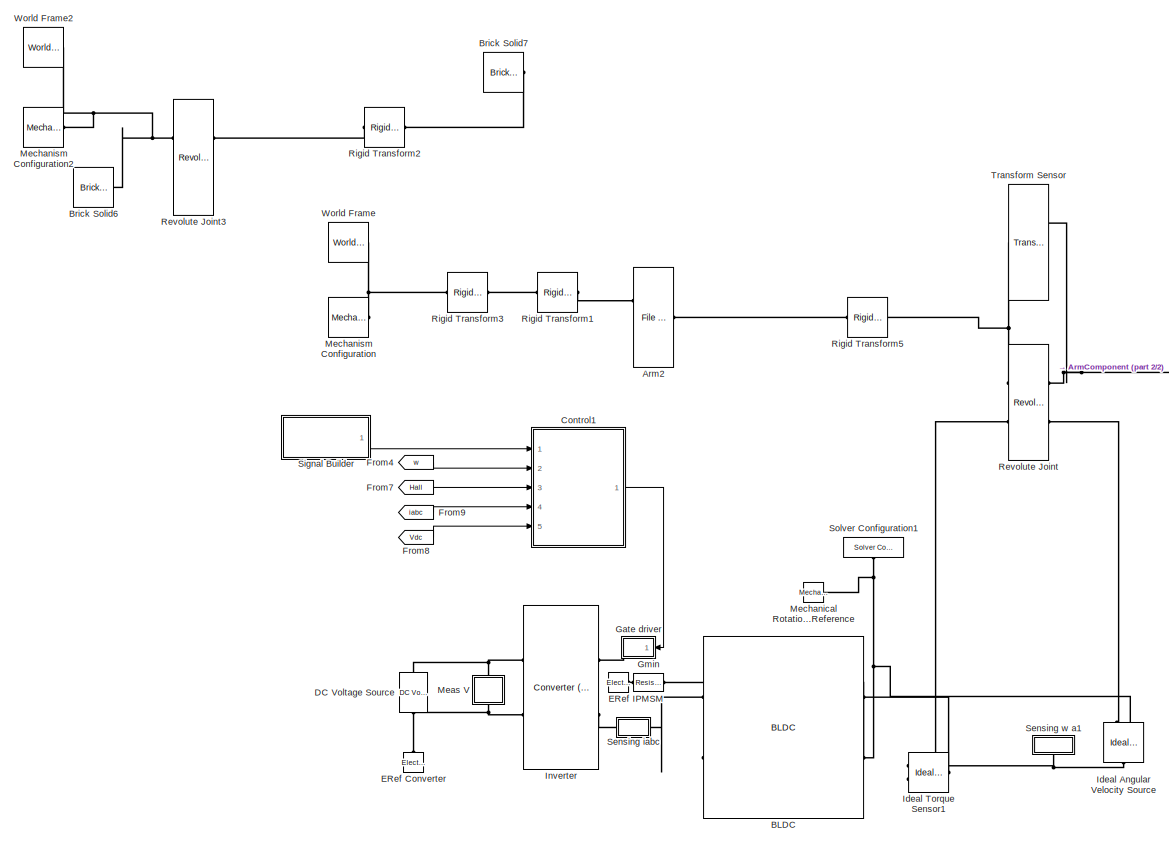
[diagram: root canvas - part 1/2, center side, full height]
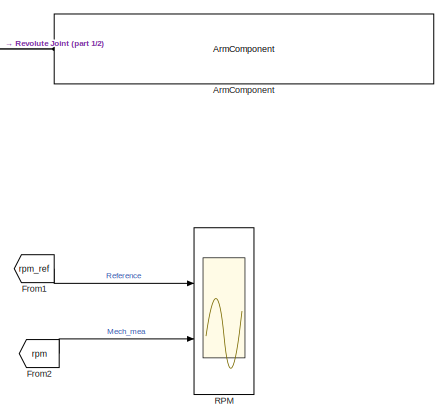
[diagram: root canvas - part 2/2, middle right region]
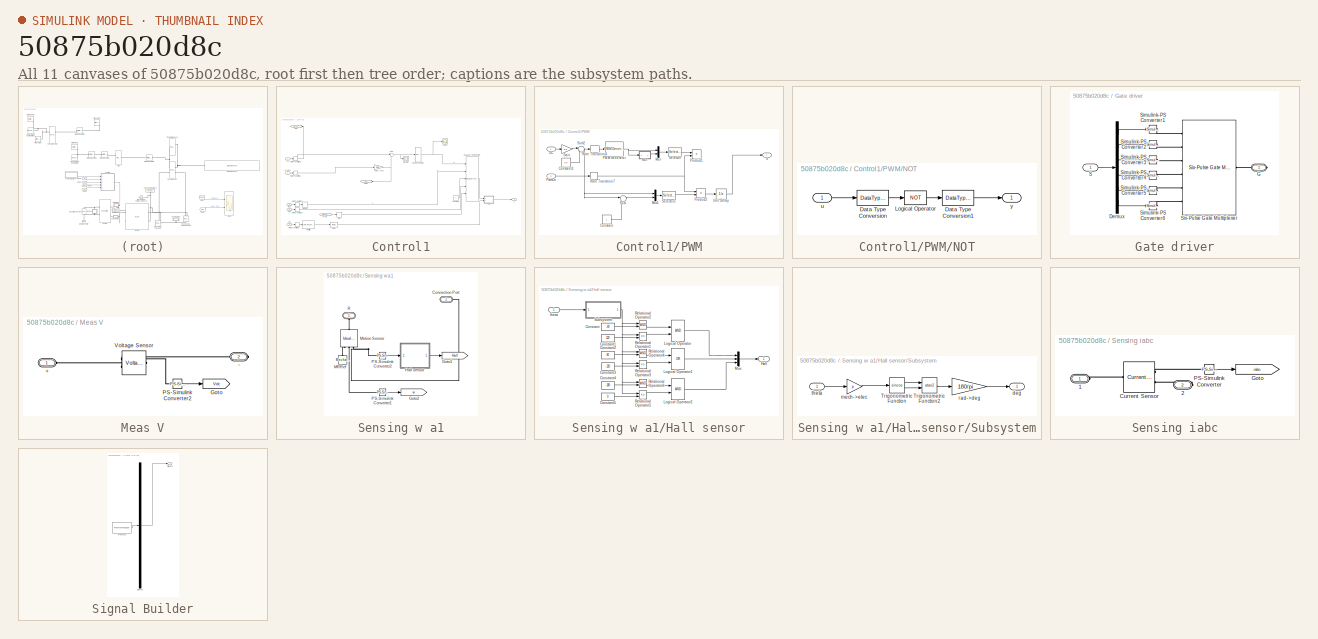
[diagram: thumbnail index - all 11 canvases of the model, root first then tree order]
MODEL slx_50875b020d8c
KIND model
CONFIG AbsTol = auto
CONFIG EnableMultiTasking = off
CONFIG FixedStep = Ts
CONFIG InitFcn = Ts = 2e-4;\nTsc = Ts;
CONFIG MaxStep = auto
CONFIG MinStep = auto
CONFIG RelTol = 1e-3
CONFIG SampleTimeConstraint = Unconstrained
CONFIG Solver = VariableStepAuto
CONFIG SolverName = VariableStepAuto
CONFIG StartTime = 0.0
CONFIG StopTime = 1
BLOCK [Reference]  Arm2   REF=sm_lib/Body Elements/File Solid
  Ports = [0, 0, 0, 0, 0, 2, 1]
  SourceBlock = sm_lib/Body Elements/File Solid
  SourceProductBaseCode = MS
  SourceProductName = Simscape Multibody
  SourceType = File Solid
BLOCK [Reference] ArmComponent  REF=test_library/ArmComponent  (lib defined in slx_4c4a53204023)
  Ports = [0, 0, 0, 0, 0, 1, 1]
  SourceBlock = test_library/ArmComponent
BLOCK [Reference] BLDC  REF=ee_lib/Electromechanical/Permanent Magnet/BLDC
  Ports = [0, 0, 0, 0, 0, 2, 2]
  SourceBlock = ee_lib/Electromechanical/Permanent Magnet/BLDC
  SourceProductBaseCode = PS
  SourceProductName = Simscape Electrical
  SourceType = BLDC
BLOCK [Reference] Brick Solid6  REF=sm_lib/Body Elements/Brick Solid
  Commented = on
  Ports = [0, 0, 0, 0, 0, 0, 1]
  SourceBlock = sm_lib/Body Elements/Brick Solid
  SourceProductBaseCode = MS
  SourceProductName = Simscape Multibody
  SourceType = Brick Solid
BLOCK [Reference] Brick Solid7  REF=sm_lib/Body Elements/Brick Solid
  Commented = on
  Ports = [0, 0, 0, 0, 0, 0, 1]
  SourceBlock = sm_lib/Body Elements/Brick Solid
  SourceProductBaseCode = MS
  SourceProductName = Simscape Multibody
  SourceType = Brick Solid
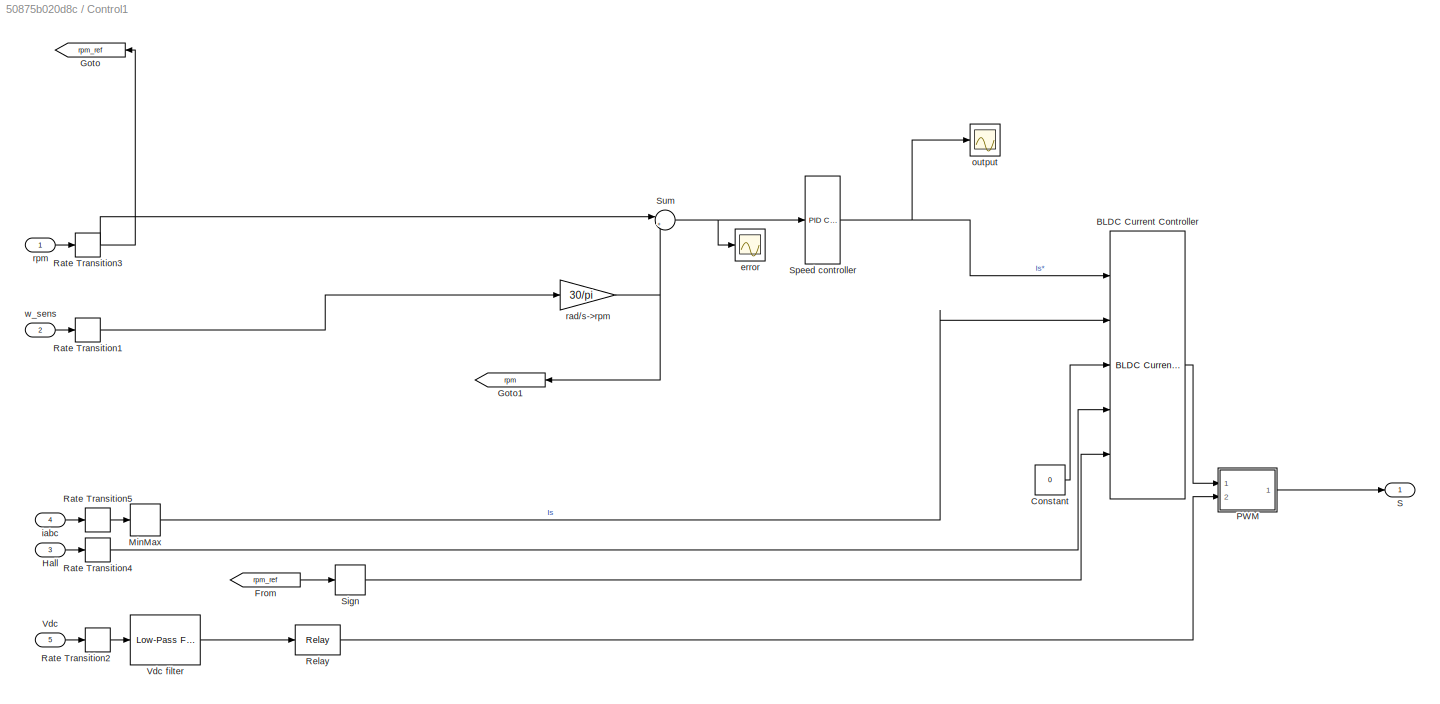
BLOCK [SubSystem] Control1
  Ports = [5, 1]
  RequestExecContextInheritance = off
BLOCK [Reference] Control1/BLDC Current Controller  REF=eeBldcCurrentController/BLDC Current Controller
  Ports = [5, 1]
  SourceBlock = eeBldcCurrentController/BLDC Current Controller
  SourceProductBaseCode = PS
  SourceProductName = Simscape Electrical
  SourceType = BLDC Current Controller
BLOCK [Constant] Control1/Constant
  Value = 0
BLOCK [From] Control1/From
  GotoTag = rpm_ref
  TagVisibility = global
BLOCK [Goto] Control1/Goto
  GotoTag = rpm_ref
  TagVisibility = global
BLOCK [Goto] Control1/Goto1
  GotoTag = rpm
  TagVisibility = global
BLOCK [Inport] Control1/Hall
  IconDisplay = Port number
  Port = 3
BLOCK [MinMax] Control1/MinMax
  Function = max
  InputSameDT = off
  Ports = [1, 1]
  SaturateOnIntegerOverflow = off
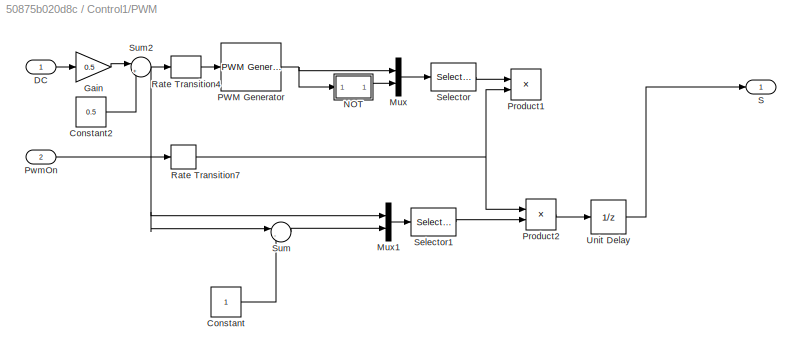
BLOCK [SubSystem] Control1/PWM
  Ports = [2, 1]
  RequestExecContextInheritance = off
BLOCK [Constant] Control1/PWM/Constant
BLOCK [Constant] Control1/PWM/Constant2
  SampleTime = Tsc
  Value = 0.5
BLOCK [Inport] Control1/PWM/DC
  IconDisplay = Port number
BLOCK [Gain] Control1/PWM/Gain
  Gain = 0.5
  OutDataTypeStr = Inherit: Inherit via internal rule
  ParamDataTypeStr = Inherit: Inherit via internal rule
  SaturateOnIntegerOverflow = off
BLOCK [Mux] Control1/PWM/Mux
  Commented = on
  DisplayOption = bar
  Inputs = 2
  Ports = [2, 1]
BLOCK [Mux] Control1/PWM/Mux1
  DisplayOption = bar
  Inputs = 2
  Ports = [2, 1]
BLOCK [SubSystem] Control1/PWM/NOT
  Commented = on
  Ports = [1, 1]
  RequestExecContextInheritance = off
BLOCK [DataTypeConversion] Control1/PWM/NOT/Data Type Conversion
  RndMeth = Floor
  SaturateOnIntegerOverflow = off
BLOCK [DataTypeConversion] Control1/PWM/NOT/Data Type Conversion1
  RndMeth = Floor
  SaturateOnIntegerOverflow = off
BLOCK [Logic] Control1/PWM/NOT/Logical Operator
  AllPortsSameDT = off
  Operator = NOT
  OutDataTypeStr = boolean
  Ports = [1, 1]
BLOCK [Inport] Control1/PWM/NOT/u
  IconDisplay = Port number
BLOCK [Outport] Control1/PWM/NOT/y
  IconDisplay = Port number
  VectorParamsAs1DForOutWhenUnconnected = off
BLOCK [Reference] Control1/PWM/PWM Generator  REF=eePwmGenerator/PWM Generator
  Commented = on
  Ports = [1, 1]
  SourceBlock = eePwmGenerator/PWM Generator
  SourceProductBaseCode = PS
  SourceProductName = Simscape Electrical
  SourceType = PWM Generator
BLOCK [Product] Control1/PWM/Product1
  Commented = on
  InputSameDT = off
  OutDataTypeStr = Inherit: Inherit via internal rule
  Ports = [2, 1]
  RndMeth = Floor
  SaturateOnIntegerOverflow = off
BLOCK [Product] Control1/PWM/Product2
  InputSameDT = off
  OutDataTypeStr = Inherit: Inherit via internal rule
  Ports = [2, 1]
  RndMeth = Floor
  SaturateOnIntegerOverflow = off
BLOCK [Inport] Control1/PWM/PwmOn
  IconDisplay = Port number
  Port = 2
BLOCK [RateTransition] Control1/PWM/Rate Transition4
  OutPortSampleTime = Ts
BLOCK [RateTransition] Control1/PWM/Rate Transition7
  OutPortSampleTime = Ts
BLOCK [Outport] Control1/PWM/S
  IconDisplay = Port number
  VectorParamsAs1DForOutWhenUnconnected = off
BLOCK [Selector] Control1/PWM/Selector
  Commented = on
  IndexOptions = Index vector (dialog)
  Indices = [1 4 2 5 3 6]
  InputPortWidth = 6
  OutputSizes = 1
  Ports = [1, 1]
BLOCK [Selector] Control1/PWM/Selector1
  IndexOptions = Index vector (dialog)
  Indices = [1 4 2 5 3 6]
  InputPortWidth = 6
  OutputSizes = 1
  Ports = [1, 1]
BLOCK [Sum] Control1/PWM/Sum
  IconShape = round
  InputSameDT = off
  Inputs = |-+
  OutDataTypeStr = Inherit: Inherit via internal rule
  Ports = [2, 1]
  SaturateOnIntegerOverflow = off
BLOCK [Sum] Control1/PWM/Sum2
  IconShape = round
  InputSameDT = off
  Inputs = |++
  OutDataTypeStr = Inherit: Inherit via internal rule
  Ports = [2, 1]
  SaturateOnIntegerOverflow = off
BLOCK [UnitDelay] Control1/PWM/Unit Delay
  HasFrameUpgradeWarning = on
  SampleTime = Tsc
BLOCK [RateTransition] Control1/Rate Transition1
BLOCK [RateTransition] Control1/Rate Transition2
  OutPortSampleTime = Tsc
BLOCK [RateTransition] Control1/Rate Transition3
BLOCK [RateTransition] Control1/Rate Transition4
  OutPortSampleTime = Tsc
BLOCK [RateTransition] Control1/Rate Transition5
  OutPortSampleTime = Tsc
BLOCK [Relay] Control1/Relay
  OffSwitchValue = Vdc/4
  OnSwitchValue = Vdc/2
BLOCK [Outport] Control1/S
  IconDisplay = Port number
  VectorParamsAs1DForOutWhenUnconnected = off
BLOCK [Signum] Control1/Sign
BLOCK [Reference] Control1/Speed controller  REF=simulink/Continuous/PID Controller
  Ports = [1, 1]
  SourceBlock = simulink/Continuous/PID Controller
  SourceProductBaseCode = SL
  SourceProductName = Simulink
  SourceType = PID 1dof
BLOCK [Sum] Control1/Sum
  IconShape = round
  InputSameDT = off
  Inputs = |+-
  OutDataTypeStr = Inherit: Inherit via internal rule
  Ports = [2, 1]
  SaturateOnIntegerOverflow = off
BLOCK [Inport] Control1/Vdc
  IconDisplay = Port number
  Port = 5
BLOCK [Reference] Control1/Vdc filter  REF=eeGeneralControl/Low-Pass Filter
(Discrete or Continuous)
  Ports = [1, 1]
  SourceBlock = eeGeneralControl/Low-Pass Filter\n(Discrete or Continuous)
  SourceProductBaseCode = PS
  SourceProductName = Simscape Electrical
  SourceType = Low-Pass Filter (Discrete or Continuous)
BLOCK [Scope] Control1/error
  Floating = off
  NumInputPorts = 1
  Ports = [1]
  ScopeSpecificationString = Simulink.scopes.TimeScopeBlockCfg('CurrentConfiguration', extmgr.ConfigurationSet(extmgr.Configuration('Core','General UI',true),extmgr.Configuration('Core','Source UI',true),extmgr.Configuration('Sources','WiredSimulink',true,'DataLoggingVariableName','ScopeData1'),extmgr.Configuration('Visuals','Time Domain',true,'SerializedDisplays',{struct('MinYLimReal','-13.40815','MaxYLimReal','112.63491','Y...<+1423ch>
BLOCK [Inport] Control1/iabc
  IconDisplay = Port number
  Port = 4
BLOCK [Scope] Control1/output
  Floating = off
  NumInputPorts = 1
  Ports = [1]
  ScopeSpecificationString = Simulink.scopes.TimeScopeBlockCfg('CurrentConfiguration', extmgr.ConfigurationSet(extmgr.Configuration('Core','General UI',true),extmgr.Configuration('Core','Source UI',true),extmgr.Configuration('Sources','WiredSimulink',true,'DataLoggingVariableName','ScopeData1'),extmgr.Configuration('Visuals','Time Domain',true,'SerializedDisplays',{struct('MinYLimReal','-62.5','MaxYLimReal','562.5','YLabelRea...<+1378ch>
BLOCK [Gain] Control1/rad//s->rpm
  Gain = 30/pi
  OutDataTypeStr = Inherit: Inherit via internal rule
  ParamDataTypeStr = Inherit: Inherit via internal rule
  SaturateOnIntegerOverflow = off
BLOCK [Inport] Control1/rpm
  IconDisplay = Port number
BLOCK [Inport] Control1/w_sens
  IconDisplay = Port number
  Port = 2
BLOCK [Reference] DC Voltage Source  REF=fl_lib/Electrical/Electrical Sources/DC Voltage Source
  Ports = [0, 0, 0, 0, 0, 1, 1]
  SourceBlock = fl_lib/Electrical/Electrical Sources/DC Voltage Source
  SourceProductBaseCode = SS
  SourceProductName = Simscape
  SourceType = DC Voltage Source
BLOCK [Reference] ERef Converter  REF=fl_lib/Electrical/Electrical Elements/Electrical Reference
  Ports = [0, 0, 0, 0, 0, 1]
  SourceBlock = fl_lib/Electrical/Electrical Elements/Electrical Reference
  SourceProductBaseCode = SS
  SourceProductName = Simscape
  SourceType = Electrical Reference
BLOCK [Reference] ERef IPMSM  REF=fl_lib/Electrical/Electrical Elements/Electrical Reference
  Ports = [0, 0, 0, 0, 0, 1]
  SourceBlock = fl_lib/Electrical/Electrical Elements/Electrical Reference
  SourceProductBaseCode = SS
  SourceProductName = Simscape
  SourceType = Electrical Reference
BLOCK [From] From1
  GotoTag = rpm_ref
  TagVisibility = global
BLOCK [From] From2
  GotoTag = rpm
  TagVisibility = global
BLOCK [From] From4
  GotoTag = w
  TagVisibility = global
BLOCK [From] From7
  GotoTag = Hall
  TagVisibility = global
BLOCK [From] From8
  GotoTag = Vdc
  TagVisibility = global
BLOCK [From] From9
  GotoTag = iabc
  TagVisibility = global
BLOCK [SubSystem] Gate driver
  Ports = [1, 0, 0, 0, 0, 0, 1]
  RequestExecContextInheritance = off
BLOCK [Demux] Gate driver/Demux
  DisplayOption = bar
  Outputs = 6
  Ports = [1, 6]
BLOCK [PMIOPort] Gate driver/G
  Side = Right
BLOCK [Inport] Gate driver/S
  IconDisplay = Port number
BLOCK [Reference] Gate driver/Simulink-PS Converter1  REF=nesl_utility/Simulink-PS
Converter
  Ports = [1, 0, 0, 0, 0, 0, 1]
  SourceBlock = nesl_utility/Simulink-PS\nConverter
  SourceProductBaseCode = SS
  SourceProductName = Simscape
  SourceType = Simulink-PS\nConverter
BLOCK [Reference] Gate driver/Simulink-PS Converter2  REF=nesl_utility/Simulink-PS
Converter
  Ports = [1, 0, 0, 0, 0, 0, 1]
  SourceBlock = nesl_utility/Simulink-PS\nConverter
  SourceProductBaseCode = SS
  SourceProductName = Simscape
  SourceType = Simulink-PS\nConverter
BLOCK [Reference] Gate driver/Simulink-PS Converter3  REF=nesl_utility/Simulink-PS
Converter
  Ports = [1, 0, 0, 0, 0, 0, 1]
  SourceBlock = nesl_utility/Simulink-PS\nConverter
  SourceProductBaseCode = SS
  SourceProductName = Simscape
  SourceType = Simulink-PS\nConverter
BLOCK [Reference] Gate driver/Simulink-PS Converter4  REF=nesl_utility/Simulink-PS
Converter
  Ports = [1, 0, 0, 0, 0, 0, 1]
  SourceBlock = nesl_utility/Simulink-PS\nConverter
  SourceProductBaseCode = SS
  SourceProductName = Simscape
  SourceType = Simulink-PS\nConverter
BLOCK [Reference] Gate driver/Simulink-PS Converter5  REF=nesl_utility/Simulink-PS
Converter
  Ports = [1, 0, 0, 0, 0, 0, 1]
  SourceBlock = nesl_utility/Simulink-PS\nConverter
  SourceProductBaseCode = SS
  SourceProductName = Simscape
  SourceType = Simulink-PS\nConverter
BLOCK [Reference] Gate driver/Simulink-PS Converter6  REF=nesl_utility/Simulink-PS
Converter
  Ports = [1, 0, 0, 0, 0, 0, 1]
  SourceBlock = nesl_utility/Simulink-PS\nConverter
  SourceProductBaseCode = SS
  SourceProductName = Simscape
  SourceType = Simulink-PS\nConverter
BLOCK [Reference] Gate driver/Six-Pulse Gate Multiplexer  REF=ee_lib/Semiconductors &
Converters/Converters/Six-Pulse Gate
Multiplexer
  Ports = [0, 0, 0, 0, 0, 6, 1]
  SourceBlock = ee_lib/Semiconductors &\nConverters/Converters/Six-Pulse Gate\nMultiplexer
  SourceProductBaseCode = PS
  SourceProductName = Simscape Electrical
  SourceType = Six-Pulse Gate\nMultiplexer
BLOCK [Reference] Gmin  REF=fl_lib/Electrical/Electrical Elements/Resistor
  Ports = [0, 0, 0, 0, 0, 1, 1]
  SourceBlock = fl_lib/Electrical/Electrical Elements/Resistor
  SourceProductBaseCode = SS
  SourceProductName = Simscape
  SourceType = Resistor
BLOCK [Reference] Ideal Angular Velocity Source  REF=fl_lib/Mechanical/Mechanical Sources/Ideal Angular
Velocity Source
  Ports = [0, 0, 0, 0, 0, 1, 2]
  SourceBlock = fl_lib/Mechanical/Mechanical Sources/Ideal Angular\nVelocity Source
  SourceProductBaseCode = SS
  SourceProductName = Simscape
  SourceType = Ideal Angular\nVelocity Source
BLOCK [Reference] Ideal Torque Sensor1  REF=fl_lib/Mechanical/Mechanical Sensors/Ideal Torque Sensor
  Ports = [0, 0, 0, 0, 0, 1, 2]
  SourceBlock = fl_lib/Mechanical/Mechanical Sensors/Ideal Torque Sensor
  SourceProductBaseCode = SS
  SourceProductName = Simscape
  SourceType = Ideal Torque Sensor
BLOCK [Reference] Inverter  REF=ee_lib/Semiconductors &
Converters/Converters/Converter
(Three-Phase)
  Ports = [0, 0, 0, 0, 0, 2, 2]
  SourceBlock = ee_lib/Semiconductors &\nConverters/Converters/Converter\n(Three-Phase)
  SourceProductBaseCode = PS
  SourceProductName = Simscape Electrical
  SourceType = Converter\n(Three-Phase)
BLOCK [SubSystem] Meas V
  Ports = [0, 0, 0, 0, 0, 1, 1]
  RequestExecContextInheritance = off
BLOCK [PMIOPort] Meas V/+
  Side = Left
BLOCK [PMIOPort] Meas V/-
  Port = 2
  Side = Right
BLOCK [Goto] Meas V/Goto
  GotoTag = Vdc
  TagVisibility = global
BLOCK [Reference] Meas V/PS-Simulink Converter2  REF=nesl_utility/PS-Simulink
Converter
  Ports = [0, 1, 0, 0, 0, 1]
  SourceBlock = nesl_utility/PS-Simulink\nConverter
  SourceProductBaseCode = SS
  SourceProductName = Simscape
  SourceType = PS-Simulink\nConverter
BLOCK [Reference] Meas V/Voltage Sensor  REF=fl_lib/Electrical/Electrical Sensors/Voltage Sensor
  Ports = [0, 0, 0, 0, 0, 1, 2]
  SourceBlock = fl_lib/Electrical/Electrical Sensors/Voltage Sensor
  SourceProductBaseCode = SS
  SourceProductName = Simscape
  SourceType = Voltage Sensor
BLOCK [Reference] Mechanical Rotational Reference  REF=fl_lib/Mechanical/Rotational Elements/Mechanical
Rotational Reference
  Ports = [0, 0, 0, 0, 0, 1]
  SourceBlock = fl_lib/Mechanical/Rotational Elements/Mechanical\nRotational Reference
  SourceProductBaseCode = SS
  SourceProductName = Simscape
  SourceType = Mechanical\nRotational Reference
BLOCK [Reference] Mechanism Configuration  REF=sm_lib/Utilities/Mechanism
Configuration
  Ports = [0, 0, 0, 0, 0, 0, 1]
  SourceBlock = sm_lib/Utilities/Mechanism\nConfiguration
  SourceProductBaseCode = MS
  SourceProductName = Simscape Multibody
  SourceType = Mechanism\nConfiguration
BLOCK [Reference] Mechanism Configuration2  REF=sm_lib/Utilities/Mechanism
Configuration
  Commented = on
  Ports = [0, 0, 0, 0, 0, 0, 1]
  SourceBlock = sm_lib/Utilities/Mechanism\nConfiguration
  SourceProductBaseCode = MS
  SourceProductName = Simscape Multibody
  SourceType = Mechanism\nConfiguration
BLOCK [Scope] RPM
  Floating = off
  NumInputPorts = 2
  Ports = [2]
  ScopeSpecificationString = Simulink.scopes.TimeScopeBlockCfg('CurrentConfiguration', extmgr.ConfigurationSet(extmgr.Configuration('Core','General UI',true,'FigureColor',[0 0 0]),extmgr.Configuration('Core','Source UI',true),extmgr.Configuration('Sources','WiredSimulink',true,'DataLoggingVariableName','ScopeData1'),extmgr.Configuration('Visuals','Time Domain',true,'SerializedDisplays',{struct('MinYLimReal','-89.04932','MaxYL...<+1893ch>
BLOCK [Reference] Revolute Joint  REF=sm_lib/Joints/Revolute Joint
  Ports = [0, 0, 0, 0, 0, 2, 2]
  SourceBlock = sm_lib/Joints/Revolute Joint
  SourceProductBaseCode = MS
  SourceProductName = Simscape Multibody
  SourceType = Revolute Joint
BLOCK [Reference] Revolute Joint3  REF=sm_lib/Joints/Revolute Joint
  Commented = on
  Ports = [0, 0, 0, 0, 0, 2, 2]
  SourceBlock = sm_lib/Joints/Revolute Joint
  SourceProductBaseCode = MS
  SourceProductName = Simscape Multibody
  SourceType = Revolute Joint
BLOCK [Reference] Rigid Transform1  REF=sm_lib/Frames and
Transforms/Rigid
Transform
  Ports = [0, 0, 0, 0, 0, 1, 1]
  SourceBlock = sm_lib/Frames and\nTransforms/Rigid\nTransform
  SourceProductBaseCode = MS
  SourceProductName = Simscape Multibody
  SourceType = Rigid\nTransform
BLOCK [Reference] Rigid Transform2  REF=sm_lib/Frames and
Transforms/Rigid
Transform
  Commented = on
  Ports = [0, 0, 0, 0, 0, 1, 1]
  SourceBlock = sm_lib/Frames and\nTransforms/Rigid\nTransform
  SourceProductBaseCode = MS
  SourceProductName = Simscape Multibody
  SourceType = Rigid\nTransform
BLOCK [Reference] Rigid Transform3  REF=sm_lib/Frames and
Transforms/Rigid
Transform
  Ports = [0, 0, 0, 0, 0, 1, 1]
  SourceBlock = sm_lib/Frames and\nTransforms/Rigid\nTransform
  SourceProductBaseCode = MS
  SourceProductName = Simscape Multibody
  SourceType = Rigid\nTransform
BLOCK [Reference] Rigid Transform5  REF=sm_lib/Frames and
Transforms/Rigid
Transform
  Ports = [0, 0, 0, 0, 0, 1, 1]
  SourceBlock = sm_lib/Frames and\nTransforms/Rigid\nTransform
  SourceProductBaseCode = MS
  SourceProductName = Simscape Multibody
  SourceType = Rigid\nTransform
BLOCK [SubSystem] Sensing iabc
  Ports = [0, 0, 0, 0, 0, 1, 1]
  RequestExecContextInheritance = off
BLOCK [PMIOPort] Sensing iabc/1
  Side = Left
BLOCK [PMIOPort] Sensing iabc/2
  Port = 2
  Side = Right
BLOCK [Reference] Sensing iabc/Current Sensor  REF=ee_lib/Sensors &
Transducers/Current Sensor
(Three-Phase)
  Ports = [0, 0, 0, 0, 0, 1, 2]
  SourceBlock = ee_lib/Sensors &\nTransducers/Current Sensor\n(Three-Phase)
  SourceProductBaseCode = PS
  SourceProductName = Simscape Electrical
  SourceType = Current Sensor\n(Three-Phase)
BLOCK [Goto] Sensing iabc/Goto
  GotoTag = iabc
  TagVisibility = global
BLOCK [Reference] Sensing iabc/PS-Simulink Converter  REF=nesl_utility/PS-Simulink
Converter
  Ports = [0, 1, 0, 0, 0, 1]
  SourceBlock = nesl_utility/PS-Simulink\nConverter
  SourceProductBaseCode = SS
  SourceProductName = Simscape
  SourceType = PS-Simulink\nConverter
BLOCK [SubSystem] Sensing w a1
  Ports = [0, 0, 0, 0, 0, 1, 1]
  RequestExecContextInheritance = off
BLOCK [PMIOPort] Sensing w a1/Connection Port
  Port = 2
  Side = Right
BLOCK [Goto] Sensing w a1/Goto1
  GotoTag = Hall
  TagVisibility = global
BLOCK [Goto] Sensing w a1/Goto2
  GotoTag = w
  TagVisibility = global
BLOCK [SubSystem] Sensing w a1/Hall sensor
  Ports = [1, 1]
  RequestExecContextInheritance = off
BLOCK [Constant] Sensing w a1/Hall sensor/Constant
  Value = -60
BLOCK [Constant] Sensing w a1/Hall sensor/Constant1
  Value = 120
BLOCK [Constant] Sensing w a1/Hall sensor/Constant2
  Value = 60
BLOCK [Constant] Sensing w a1/Hall sensor/Constant3
  Value = -120
BLOCK [Constant] Sensing w a1/Hall sensor/Constant4
  Value = -180
BLOCK [Constant] Sensing w a1/Hall sensor/Constant5
  Value = 0
BLOCK [Outport] Sensing w a1/Hall sensor/Hall
  IconDisplay = Port number
  VectorParamsAs1DForOutWhenUnconnected = off
BLOCK [Logic] Sensing w a1/Hall sensor/Logical Operator
  AllPortsSameDT = off
  OutDataTypeStr = boolean
  Ports = [2, 1]
BLOCK [Logic] Sensing w a1/Hall sensor/Logical Operator1
  AllPortsSameDT = off
  Operator = OR
  OutDataTypeStr = boolean
  Ports = [2, 1]
BLOCK [Logic] Sensing w a1/Hall sensor/Logical Operator2
  AllPortsSameDT = off
  OutDataTypeStr = boolean
  Ports = [2, 1]
BLOCK [Mux] Sensing w a1/Hall sensor/Mux
  DisplayOption = bar
  Inputs = 3
  Ports = [3, 1]
BLOCK [RelationalOperator] Sensing w a1/Hall sensor/Relational Operator1
  Operator = <=
  Ports = [2, 1]
BLOCK [RelationalOperator] Sensing w a1/Hall sensor/Relational Operator2
  Ports = [2, 1]
BLOCK [RelationalOperator] Sensing w a1/Hall sensor/Relational Operator3
  Operator = <=
  Ports = [2, 1]
BLOCK [RelationalOperator] Sensing w a1/Hall sensor/Relational Operator4
  Ports = [2, 1]
BLOCK [RelationalOperator] Sensing w a1/Hall sensor/Relational Operator5
  Operator = <=
  Ports = [2, 1]
BLOCK [RelationalOperator] Sensing w a1/Hall sensor/Relational Operator6
  Ports = [2, 1]
BLOCK [SubSystem] Sensing w a1/Hall sensor/Subsystem
  Ports = [1, 1]
  RequestExecContextInheritance = off
BLOCK [Trigonometry] Sensing w a1/Hall sensor/Subsystem/Trigonometric Function
  Operator = sincos
  Ports = [1, 2]
BLOCK [Trigonometry] Sensing w a1/Hall sensor/Subsystem/Trigonometric Function2
  Operator = atan2
  Ports = [2, 1]
BLOCK [Outport] Sensing w a1/Hall sensor/Subsystem/deg
  IconDisplay = Port number
  VectorParamsAs1DForOutWhenUnconnected = off
BLOCK [Gain] Sensing w a1/Hall sensor/Subsystem/mech->elec
  Gain = p
  OutDataTypeStr = Inherit: Inherit via internal rule
  ParamDataTypeStr = Inherit: Inherit via internal rule
  SaturateOnIntegerOverflow = off
BLOCK [Gain] Sensing w a1/Hall sensor/Subsystem/rad->deg
  Gain = 180/pi
BLOCK [Inport] Sensing w a1/Hall sensor/Subsystem/theta
  IconDisplay = Port number
BLOCK [Inport] Sensing w a1/Hall sensor/theta
  IconDisplay = Port number
BLOCK [Reference] Sensing w a1/MRRef  REF=fl_lib/Mechanical/Rotational Elements/Mechanical
Rotational Reference
  Ports = [0, 0, 0, 0, 0, 1]
  SourceBlock = fl_lib/Mechanical/Rotational Elements/Mechanical\nRotational Reference
  SourceProductBaseCode = SS
  SourceProductName = Simscape
  SourceType = Mechanical\nRotational Reference
BLOCK [Reference] Sensing w a1/Motion Sensor  REF=fl_lib/Mechanical/Mechanical Sensors/Ideal Rotational
Motion Sensor
  Ports = [0, 0, 0, 0, 0, 1, 3]
  SourceBlock = fl_lib/Mechanical/Mechanical Sensors/Ideal Rotational\nMotion Sensor
  SourceProductBaseCode = SS
  SourceProductName = Simscape
  SourceType = Ideal Rotational\nMotion Sensor
BLOCK [Reference] Sensing w a1/PS-Simulink Converter1  REF=nesl_utility/PS-Simulink
Converter
  Ports = [0, 1, 0, 0, 0, 1]
  SourceBlock = nesl_utility/PS-Simulink\nConverter
  SourceProductBaseCode = SS
  SourceProductName = Simscape
  SourceType = PS-Simulink\nConverter
BLOCK [Reference] Sensing w a1/PS-Simulink Converter2  REF=nesl_utility/PS-Simulink
Converter
  Ports = [0, 1, 0, 0, 0, 1]
  SourceBlock = nesl_utility/PS-Simulink\nConverter
  SourceProductBaseCode = SS
  SourceProductName = Simscape
  SourceType = PS-Simulink\nConverter
BLOCK [PMIOPort] Sensing w a1/R
  Side = Left
BLOCK [SubSystem] Signal Builder
  ClipboardFcn = sigbuilder_block('clipboard');
  CloseFcn = sigbuilder_block('close');
  ContinueFcn = sigbuilder_block('continue');
  CopyFcn = sigbuilder_block('copy');
  DeleteFcn = sigbuilder_block('delete');
  LoadFcn = sigbuilder_block('load');
  MaskHideContents = on
  ModelCloseFcn = sigbuilder_block('modelClose');
  NameChangeFcn = sigbuilder_block('namechange');
  OpenFcn = sigbuilder_block('open',[437.6 199.2 550.4 400 ]);
  PauseFcn = sigbuilder_block('pause');
  Ports = [0, 1]
  PreSaveFcn = sigbuilder_block('preSave');
  RequestExecContextInheritance = off
  StartFcn = sigbuilder_block('start');
  StopFcn = sigbuilder_block('stop');
  Tag = STV Subsys
BLOCK [Demux] Signal Builder/Demux
  Outputs = 1
  Ports = [1, 1]
  Tag = STV Demux
BLOCK [FromWorkspace] Signal Builder/FromWs
  SampleTime = 0
  Tag = STV FromWs
  VariableName = tuvar
  ZeroCross = on
BLOCK [Outport] Signal Builder/Signal 1
  IconDisplay = Port number
  Tag = STV Outport
BLOCK [Reference] Solver Configuration1  REF=nesl_utility/Solver
Configuration
  Ports = [0, 0, 0, 0, 0, 0, 1]
  SourceBlock = nesl_utility/Solver\nConfiguration
  SourceProductBaseCode = SS
  SourceProductName = Simscape
  SourceType = Solver\nConfiguration
BLOCK [Reference] Transform Sensor  REF=sm_lib/Frames and
Transforms/Transform
Sensor
  Ports = [0, 0, 0, 0, 0, 1, 2]
  SourceBlock = sm_lib/Frames and\nTransforms/Transform\nSensor
  SourceProductBaseCode = MS
  SourceProductName = Simscape Multibody
  SourceType = Transform\nSensor
BLOCK [Reference] World Frame  REF=sm_lib/Frames and
Transforms/World Frame
  Ports = [0, 0, 0, 0, 0, 0, 1]
  SourceBlock = sm_lib/Frames and\nTransforms/World Frame
  SourceProductBaseCode = MS
  SourceProductName = Simscape Multibody
  SourceType = World Frame
BLOCK [Reference] World Frame2  REF=sm_lib/Frames and
Transforms/World Frame
  Commented = on
  Ports = [0, 0, 0, 0, 0, 0, 1]
  SourceBlock = sm_lib/Frames and\nTransforms/World Frame
  SourceProductBaseCode = MS
  SourceProductName = Simscape Multibody
  SourceType = World Frame
LINE Control1/BLDC Current Controller:1 -> Control1/PWM:1
LINE Control1/Constant:1 -> Control1/BLDC Current Controller:3
LINE Control1/From:1 -> Control1/Sign:1
LINE Control1/Hall:1 -> Control1/Rate Transition4:1
LINE Control1/MinMax:1 -> Control1/BLDC Current Controller:2
LINE Control1/PWM/Constant2:1 -> Control1/PWM/Sum2:2
LINE Control1/PWM/Constant:1 -> Control1/PWM/Sum:2
LINE Control1/PWM/DC:1 -> Control1/PWM/Gain:1
LINE Control1/PWM/Gain:1 -> Control1/PWM/Sum2:1
LINE Control1/PWM/Mux1:1 -> Control1/PWM/Selector1:1
LINE Control1/PWM/Mux:1 -> Control1/PWM/Selector:1
LINE Control1/PWM/NOT/Data Type Conversion1:1 -> Control1/PWM/NOT/y:1
LINE Control1/PWM/NOT/Data Type Conversion:1 -> Control1/PWM/NOT/Logical Operator:1
LINE Control1/PWM/NOT/Logical Operator:1 -> Control1/PWM/NOT/Data Type Conversion1:1
LINE Control1/PWM/NOT/u:1 -> Control1/PWM/NOT/Data Type Conversion:1
LINE Control1/PWM/NOT:1 -> Control1/PWM/Mux:2
NET Control1/PWM/PWM Generator:1 -> Control1/PWM/Mux:1, Control1/PWM/NOT:1
LINE Control1/PWM/Product2:1 -> Control1/PWM/Unit Delay:1
LINE Control1/PWM/PwmOn:1 -> Control1/PWM/Rate Transition7:1
LINE Control1/PWM/Rate Transition4:1 -> Control1/PWM/PWM Generator:1
NET Control1/PWM/Rate Transition7:1 -> Control1/PWM/Product1:2, Control1/PWM/Product2:1
LINE Control1/PWM/Selector1:1 -> Control1/PWM/Product2:2
LINE Control1/PWM/Selector:1 -> Control1/PWM/Product1:1
NET Control1/PWM/Sum2:1 -> Control1/PWM/Mux1:1, Control1/PWM/Rate Transition4:1, Control1/PWM/Sum:1
LINE Control1/PWM/Sum:1 -> Control1/PWM/Mux1:2
LINE Control1/PWM/Unit Delay:1 -> Control1/PWM/S:1
LINE Control1/PWM:1 -> Control1/S:1
LINE Control1/Rate Transition1:1 -> Control1/rad//s->rpm:1
LINE Control1/Rate Transition2:1 -> Control1/Vdc filter:1
NET Control1/Rate Transition3:1 -> Control1/Goto:1, Control1/Sum:1
LINE Control1/Rate Transition4:1 -> Control1/BLDC Current Controller:4
LINE Control1/Rate Transition5:1 -> Control1/MinMax:1
LINE Control1/Relay:1 -> Control1/PWM:2
LINE Control1/Sign:1 -> Control1/BLDC Current Controller:5
NET Control1/Speed controller:1 -> Control1/BLDC Current Controller:1, Control1/output:1
NET Control1/Sum:1 -> Control1/Speed controller:1, Control1/error:1
LINE Control1/Vdc filter:1 -> Control1/Relay:1
LINE Control1/Vdc:1 -> Control1/Rate Transition2:1
LINE Control1/iabc:1 -> Control1/Rate Transition5:1
NET Control1/rad//s->rpm:1 -> Control1/Goto1:1, Control1/Sum:2
LINE Control1/rpm:1 -> Control1/Rate Transition3:1
LINE Control1/w_sens:1 -> Control1/Rate Transition1:1
LINE Control1:1 -> Gate driver:1
LINE From1:1 -> RPM:1
LINE From2:1 -> RPM:2
LINE From4:1 -> Control1:2
LINE From7:1 -> Control1:3
LINE From8:1 -> Control1:5
LINE From9:1 -> Control1:4
LINE Gate driver/Demux:1 -> Gate driver/Simulink-PS Converter1:1
LINE Gate driver/Demux:2 -> Gate driver/Simulink-PS Converter2:1
LINE Gate driver/Demux:3 -> Gate driver/Simulink-PS Converter3:1
LINE Gate driver/Demux:4 -> Gate driver/Simulink-PS Converter4:1
LINE Gate driver/Demux:5 -> Gate driver/Simulink-PS Converter5:1
LINE Gate driver/Demux:6 -> Gate driver/Simulink-PS Converter6:1
LINE Gate driver/S:1 -> Gate driver/Demux:1
LINE Meas V/PS-Simulink Converter2:1 -> Meas V/Goto:1
LINE Sensing iabc/PS-Simulink Converter:1 -> Sensing iabc/Goto:1
LINE Sensing w a1/Hall sensor/Constant1:1 -> Sensing w a1/Hall sensor/Relational Operator1:2
LINE Sensing w a1/Hall sensor/Constant2:1 -> Sensing w a1/Hall sensor/Relational Operator4:2
LINE Sensing w a1/Hall sensor/Constant3:1 -> Sensing w a1/Hall sensor/Relational Operator3:2
LINE Sensing w a1/Hall sensor/Constant4:1 -> Sensing w a1/Hall sensor/Relational Operator6:2
LINE Sensing w a1/Hall sensor/Constant5:1 -> Sensing w a1/Hall sensor/Relational Operator5:2
LINE Sensing w a1/Hall sensor/Constant:1 -> Sensing w a1/Hall sensor/Relational Operator2:2
LINE Sensing w a1/Hall sensor/Logical Operator1:1 -> Sensing w a1/Hall sensor/Mux:2
LINE Sensing w a1/Hall sensor/Logical Operator2:1 -> Sensing w a1/Hall sensor/Mux:3
LINE Sensing w a1/Hall sensor/Logical Operator:1 -> Sensing w a1/Hall sensor/Mux:1
LINE Sensing w a1/Hall sensor/Mux:1 -> Sensing w a1/Hall sensor/Hall:1
LINE Sensing w a1/Hall sensor/Relational Operator1:1 -> Sensing w a1/Hall sensor/Logical Operator:2
LINE Sensing w a1/Hall sensor/Relational Operator2:1 -> Sensing w a1/Hall sensor/Logical Operator:1
LINE Sensing w a1/Hall sensor/Relational Operator3:1 -> Sensing w a1/Hall sensor/Logical Operator1:2
LINE Sensing w a1/Hall sensor/Relational Operator4:1 -> Sensing w a1/Hall sensor/Logical Operator1:1
LINE Sensing w a1/Hall sensor/Relational Operator5:1 -> Sensing w a1/Hall sensor/Logical Operator2:2
LINE Sensing w a1/Hall sensor/Relational Operator6:1 -> Sensing w a1/Hall sensor/Logical Operator2:1
LINE Sensing w a1/Hall sensor/Subsystem/Trigonometric Function2:1 -> Sensing w a1/Hall sensor/Subsystem/rad->deg:1
LINE Sensing w a1/Hall sensor/Subsystem/Trigonometric Function:1 -> Sensing w a1/Hall sensor/Subsystem/Trigonometric Function2:1
LINE Sensing w a1/Hall sensor/Subsystem/Trigonometric Function:2 -> Sensing w a1/Hall sensor/Subsystem/Trigonometric Function2:2
LINE Sensing w a1/Hall sensor/Subsystem/mech->elec:1 -> Sensing w a1/Hall sensor/Subsystem/Trigonometric Function:1
LINE Sensing w a1/Hall sensor/Subsystem/rad->deg:1 -> Sensing w a1/Hall sensor/Subsystem/deg:1
LINE Sensing w a1/Hall sensor/Subsystem/theta:1 -> Sensing w a1/Hall sensor/Subsystem/mech->elec:1
NET Sensing w a1/Hall sensor/Subsystem:1 -> Sensing w a1/Hall sensor/Relational Operator1:1, Sensing w a1/Hall sensor/Relational Operator2:1, Sensing w a1/Hall sensor/Relational Operator3:1, Sensing w a1/Hall sensor/Relational Operator4:1, Sensing w a1/Hall sensor/Relational Operator5:1, Sensing w a1/Hall sensor/Relational Operator6:1
LINE Sensing w a1/Hall sensor/theta:1 -> Sensing w a1/Hall sensor/Subsystem:1
LINE Sensing w a1/Hall sensor:1 -> Sensing w a1/Goto1:1
LINE Sensing w a1/PS-Simulink Converter1:1 -> Sensing w a1/Goto2:1
LINE Sensing w a1/PS-Simulink Converter2:1 -> Sensing w a1/Hall sensor:1
LINE Signal Builder:1 -> Control1:1
PLINE  Arm2 :LConn1 -- Rigid Transform1:RConn1
PLINE  Arm2 :RConn1 -- Rigid Transform5:LConn1
PNET net1: ArmComponent:LConn1 -- Revolute Joint:RConn1 -- Transform Sensor:RConn1
PLINE BLDC:LConn1 -- Sensing iabc:RConn1
PLINE BLDC:LConn2 -- Gmin:RConn1
PLINE BLDC:RConn1 -- Ideal Torque Sensor1:LConn1
PNET net2: BLDC:RConn2 -- Ideal Angular Velocity Source:RConn2 -- Mechanical Rotational Reference:LConn1 -- Solver Configuration1:RConn1
PNET net3: Brick Solid6:RConn1 -- Mechanism Configuration2:RConn1 -- Revolute Joint3:LConn1 -- World Frame2:RConn1
PLINE Brick Solid7:RConn1 -- Rigid Transform2:RConn1
PNET net4: DC Voltage Source:LConn1 -- Inverter:RConn1 -- Meas V:LConn1
PNET net5: DC Voltage Source:RConn1 -- ERef Converter:LConn1 -- Inverter:RConn2 -- Meas V:RConn1
PLINE ERef IPMSM:LConn1 -- Gmin:LConn1
PLINE Gate driver/G:RConn1 -- Gate driver/Six-Pulse Gate Multiplexer:RConn1
PLINE Gate driver/Simulink-PS Converter1:RConn1 -- Gate driver/Six-Pulse Gate Multiplexer:LConn1
PLINE Gate driver/Simulink-PS Converter2:RConn1 -- Gate driver/Six-Pulse Gate Multiplexer:LConn2
PLINE Gate driver/Simulink-PS Converter3:RConn1 -- Gate driver/Six-Pulse Gate Multiplexer:LConn3
PLINE Gate driver/Simulink-PS Converter4:RConn1 -- Gate driver/Six-Pulse Gate Multiplexer:LConn4
PLINE Gate driver/Simulink-PS Converter5:RConn1 -- Gate driver/Six-Pulse Gate Multiplexer:LConn5
PLINE Gate driver/Simulink-PS Converter6:RConn1 -- Gate driver/Six-Pulse Gate Multiplexer:LConn6
PLINE Gate driver:RConn1 -- Inverter:LConn1
PNET net6: Ideal Angular Velocity Source:LConn1 -- Ideal Torque Sensor1:RConn1 -- Sensing w a1:LConn1
PLINE Ideal Angular Velocity Source:RConn1 -- Revolute Joint:RConn2
PLINE Ideal Torque Sensor1:RConn2 -- Revolute Joint:LConn2
PLINE Inverter:LConn2 -- Sensing iabc:LConn1
PLINE Meas V/+:RConn1 -- Meas V/Voltage Sensor:LConn1
PLINE Meas V/-:RConn1 -- Meas V/Voltage Sensor:RConn2
PLINE Meas V/PS-Simulink Converter2:LConn1 -- Meas V/Voltage Sensor:RConn1
PNET net7: Mechanism Configuration:RConn1 -- Rigid Transform3:LConn1 -- World Frame:RConn1
PLINE Revolute Joint3:RConn1 -- Rigid Transform2:LConn1
PNET net8: Revolute Joint:LConn1 -- Rigid Transform5:RConn1 -- Transform Sensor:LConn1
PLINE Rigid Transform1:LConn1 -- Rigid Transform3:RConn1
PLINE Sensing iabc/1:RConn1 -- Sensing iabc/Current Sensor:LConn1
PLINE Sensing iabc/2:RConn1 -- Sensing iabc/Current Sensor:RConn2
PLINE Sensing iabc/Current Sensor:RConn1 -- Sensing iabc/PS-Simulink Converter:LConn1
PNET net9: Sensing w a1/Connection Port:RConn1 -- Sensing w a1/Motion Sensor:RConn3 -- Sensing w a1/PS-Simulink Converter2:LConn1
PLINE Sensing w a1/MRRef:LConn1 -- Sensing w a1/Motion Sensor:RConn1
PLINE Sensing w a1/Motion Sensor:LConn1 -- Sensing w a1/R:RConn1
PLINE Sensing w a1/Motion Sensor:RConn2 -- Sensing w a1/PS-Simulink Converter1:LConn1
note: NET lines group one-source signal fan-out (src -> all destinations, sorted); 1:1 wires keep LINE; PNET lines group multi-terminal physical nets as a canonical sorted terminal list (undirected conserving connections); 2-terminal nets keep the pairwise PLINE form
